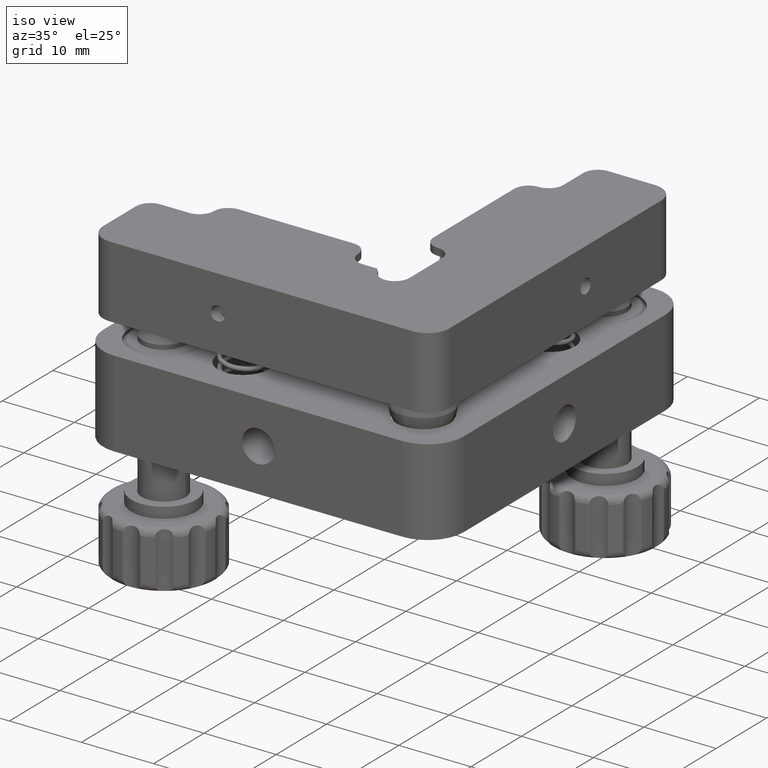
[diagram: clean part render]
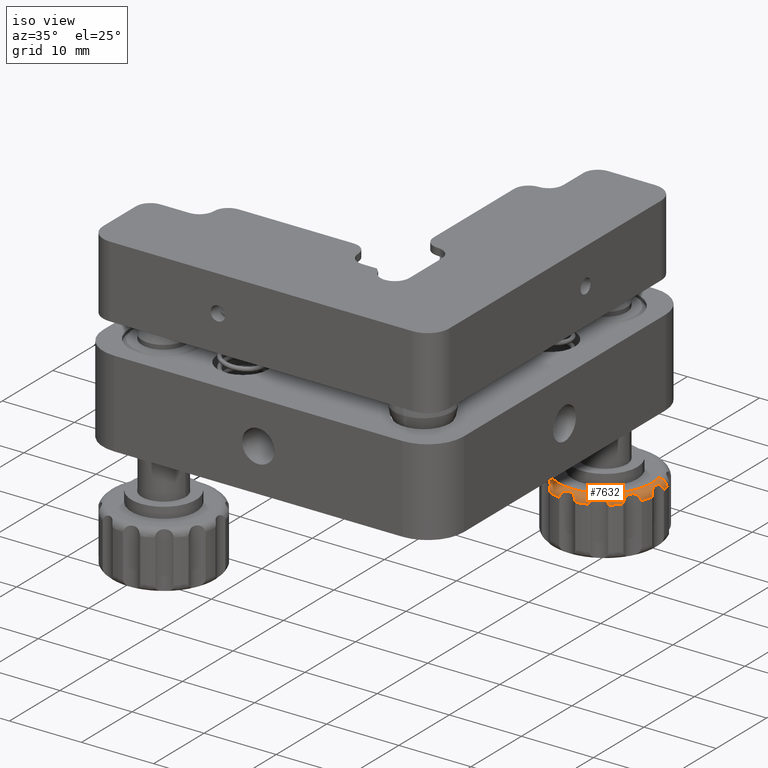
[diagram: same view with one face highlighted and labeled with its STEP entity id]
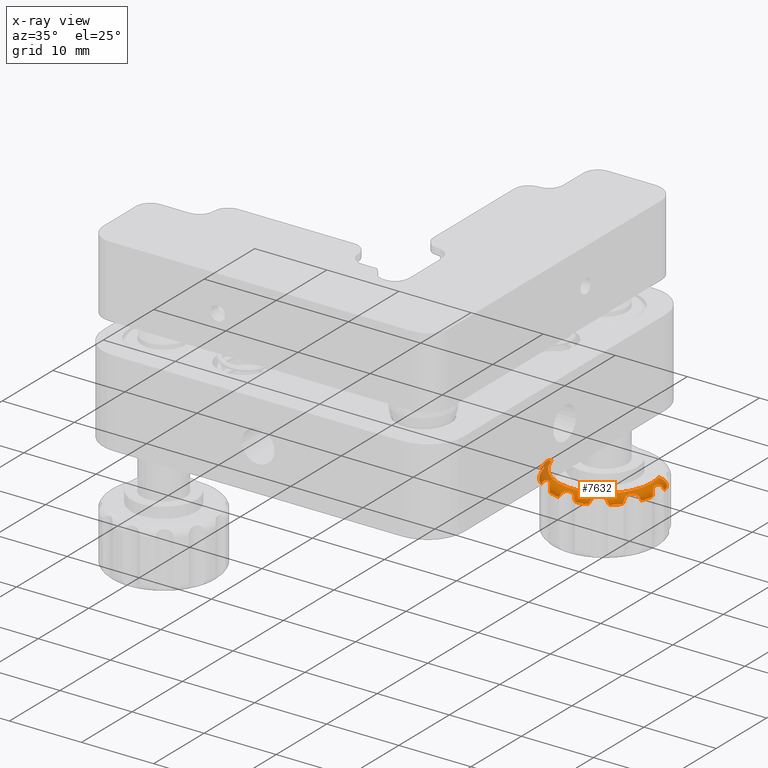
[diagram: x-ray of the same camera — body ghosted, the highlighted face saturated]
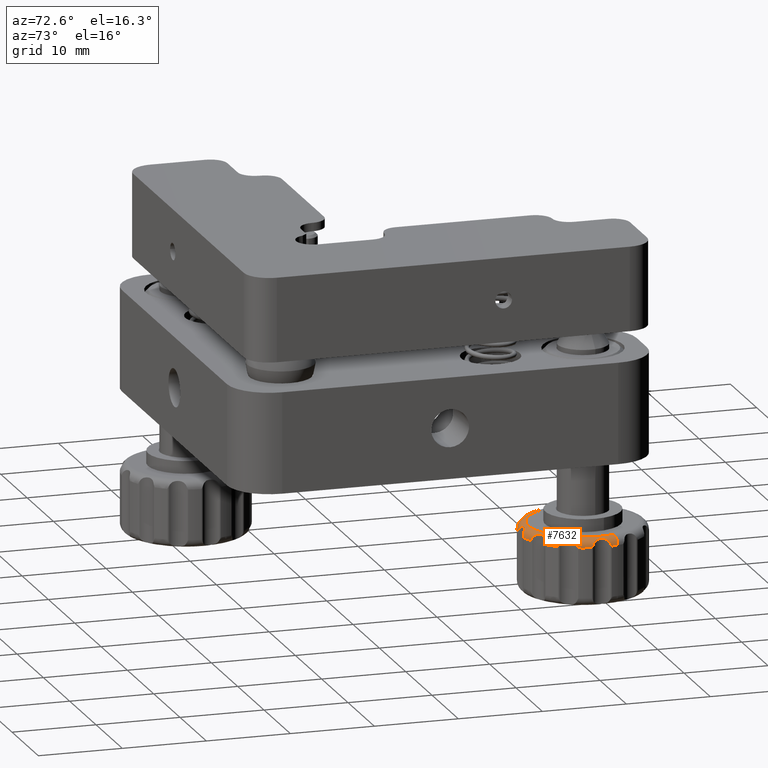
[diagram: same view with one face highlighted and labeled with its STEP entity id]
A machine part, iso view. The second image highlights one B-rep face of the part: STEP entity #7632.
The next image is the same camera in x-ray: the body ghosted, the highlighted face saturated — about 14% of this face is hidden behind the body in this view.
A second angle (auxiliary view) of the same face is appended — the face is thin or edge-on in the first view.
In plain terms, the highlighted toroidal blend (fillet) surface has major radius 6.5 mm and minor (blend) radius 1 mm.
Its self-contained STEP definition (entity closure, byte-faithful):
#13 = VERTEX_POINT ( 'NONE', #11383 ) ;
#17 = CARTESIAN_POINT ( 'NONE',  ( 17.54736110693996665, 10.96371785645358443, -23.65797987019828952 ) ) ;
#51 = CARTESIAN_POINT ( 'NONE',  ( 13.57376132078033670, 12.17490989872115037, -23.91706082489124086 ) ) ;
#95 = CARTESIAN_POINT ( 'NONE',  ( 18.13054736227067210, 10.99868434283909835, -23.63430141390763950 ) ) ;
#132 = CARTESIAN_POINT ( 'NONE',  ( 13.50611747358433412, 12.16726805095306396, -23.98721942998191281 ) ) ;
#275 = CARTESIAN_POINT ( 'NONE',  ( 18.32550624043057397, 10.95732295394623534, -23.65752537221050389 ) ) ;
#279 = CARTESIAN_POINT ( 'NONE',  ( 25.33191162596630974, 16.98277899368543231, -24.06897026124147132 ) ) ;
#299 = ORIENTED_EDGE ( 'NONE', *, *, #8260, .F. ) ;
#307 = CARTESIAN_POINT ( 'NONE',  ( 14.76055815027630480, 11.73810964725261030, -23.65752537221052165 ) ) ;
#363 = CARTESIAN_POINT ( 'NONE',  ( 25.31471035227310296, 18.84550826198535134, -23.98780853955109649 ) ) ;
#403 = ORIENTED_EDGE ( 'NONE', *, *, #9422, .T. ) ;
#642 = CARTESIAN_POINT ( 'NONE',  ( 15.09318460601004830, 11.19249745266708373, -24.06897026124344308 ) ) ;
#707 = EDGE_CURVE ( 'NONE', #17196, #5653, #12650, .T. ) ;
#730 = VERTEX_POINT ( 'NONE', #14435 ) ;
#847 = CARTESIAN_POINT ( 'NONE',  ( 24.26189035274741101, 14.76055815027634921, -23.65752537221047902 ) ) ;
#874 = CARTESIAN_POINT ( 'NONE',  ( 12.07887275102659252, 13.55793755467740347, -24.06897026124342176 ) ) ;
#886 = EDGE_CURVE ( 'NONE', #15145, #12227, #10916, .T. ) ;
#927 = CARTESIAN_POINT ( 'NONE',  ( 16.98277899368539678, 10.66808837403372756, -24.06897026124147132 ) ) ;
#1104 = EDGE_CURVE ( 'NONE', #4990, #6647, #16605, .T. ) ;
#1144 = DIRECTION ( 'NONE',  ( -0.9681941527301307637, -0.2502000851702178008, 0.000000000000000000 ) ) ;
#1165 = CARTESIAN_POINT ( 'NONE',  ( 18.00000000000004974, 17.99999999999999645, -23.50041507641943284 ) ) ;
#1181 = CARTESIAN_POINT ( 'NONE',  ( 24.29326199274591502, 19.62630055360641279, -24.50041507641943284 ) ) ;
#1255 = CARTESIAN_POINT ( 'NONE',  ( 21.61371516070391863, 12.00195646212024414, -23.63430141390762529 ) ) ;
#1326 = CARTESIAN_POINT ( 'NONE',  ( 17.02454954502446682, 10.70176469545237730, -23.98721942998188794 ) ) ;
#1417 = CARTESIAN_POINT ( 'NONE',  ( 25.41533429602393568, 19.12375143079423623, -24.50041507641942573 ) ) ;
#1426 = CARTESIAN_POINT ( 'NONE',  ( 25.25779534665062798, 17.07930991122190889, -23.91706082489121599 ) ) ;
#1454 = ORIENTED_EDGE ( 'NONE', *, *, #2158, .F. ) ;
#1543 = CARTESIAN_POINT ( 'NONE',  ( 15.04847829699423656, 11.30615792920666074, -23.91665278817948348 ) ) ;
#1590 = CARTESIAN_POINT ( 'NONE',  ( 17.07930991122189113, 10.74220465334940933, -23.91706082489121954 ) ) ;
#1599 = CIRCLE ( 'NONE', #13940, 7.500000000000022204 ) ;
#1702 = B_SPLINE_CURVE_WITH_KNOTS ( 'NONE', 3,
 ( #14369, #3826, #10414, #3919 ),
 .UNSPECIFIED., .F., .F.,
 ( 4, 4 ),
 ( 6.463701650357584330E-16, 0.0004984791478706602922 ),
 .UNSPECIFIED. ) ;
#1775 = DIRECTION ( 'NONE',  ( -6.271672922119195220E-18, 6.585351383577223838E-17, -1.000000000000000000 ) ) ;
#1795 = CARTESIAN_POINT ( 'NONE',  ( 25.34887783931259619, 18.88637529835948570, -24.06897026124343597 ) ) ;
#2080 = CARTESIAN_POINT ( 'NONE',  ( 11.97275530877975669, 14.43682250916367238, -23.63468020554455862 ) ) ;
#2098 = EDGE_CURVE ( 'NONE', #11621, #2130, #6092, .T. ) ;
#2130 = VERTEX_POINT ( 'NONE', #3545 ) ;
#2158 = EDGE_CURVE ( 'NONE', #13920, #5653, #11321, .T. ) ;
#2162 = CARTESIAN_POINT ( 'NONE',  ( 22.44206244532263028, 12.07887275102657654, -24.06897026124343597 ) ) ;
#2185 = AXIS2_PLACEMENT_3D ( 'NONE', #17256, #17338, #2738 ) ;
#2190 = CARTESIAN_POINT ( 'NONE',  ( 10.99700442474260420, 15.31397973034320614, -24.35451595358334131 ) ) ;
#2229 = B_SPLINE_CURVE_WITH_KNOTS ( 'NONE', 3,
 ( #15647, #14404, #3604, #2380 ),
 .UNSPECIFIED., .F., .F.,
 ( 4, 4 ),
 ( 6.548759187033097377E-16, 0.0004984791478706620269 ),
 .UNSPECIFIED. ) ;
#2246 = CARTESIAN_POINT ( 'NONE',  ( 23.82765957623281849, 13.27823806406721019, -24.35451595358456700 ) ) ;
#2250 = CARTESIAN_POINT ( 'NONE',  ( 23.86727963797602570, 14.08986214809593918, -23.65797987019827886 ) ) ;
#2293 = EDGE_CURVE ( 'NONE', #13, #6470, #8159, .T. ) ;
#2380 = CARTESIAN_POINT ( 'NONE',  ( 12.14000783748639023, 13.31913556538114385, -24.50041507641942218 ) ) ;
#2413 = EDGE_CURVE ( 'NONE', #15441, #2859, #8879, .T. ) ;
#2508 = CARTESIAN_POINT ( 'NONE',  ( 16.82466400097546355, 10.59221779440846944, -24.35451595358413002 ) ) ;
#2583 = CARTESIAN_POINT ( 'NONE',  ( 20.90701974516727191, 11.39170172619304466, -23.80152507313179200 ) ) ;
#2660 = CARTESIAN_POINT ( 'NONE',  ( 22.38958681012550755, 12.08802914459916522, -23.98780853955108583 ) ) ;
#2667 = DIRECTION ( 'NONE',  ( -0.2502000851702179673, 0.9681941527301306527, 6.532816013180139306E-17 ) ) ;
#2694 = EDGE_CURVE ( 'NONE', #17196, #15870, #1599, .T. ) ;
#2738 = DIRECTION ( 'NONE',  ( 0.9681941527301309858, 0.2502000851702171347, 0.000000000000000000 ) ) ;
#2792 = CARTESIAN_POINT ( 'NONE',  ( 20.78501658025154342, 11.14176777045345723, -24.06897026124146421 ) ) ;
#2841 = CARTESIAN_POINT ( 'NONE',  ( 22.44206244532263028, 12.07887275102657654, -24.06897026124343597 ) ) ;
#2859 = VERTEX_POINT ( 'NONE', #1417 ) ;
#2963 = CARTESIAN_POINT ( 'NONE',  ( 24.98374359330782468, 15.26553013859496666, -24.50041507641944705 ) ) ;
#3108 = VERTEX_POINT ( 'NONE', #10264 ) ;
#3169 = DIRECTION ( 'NONE',  ( -6.271672922119195220E-18, 6.585351383577223838E-17, -1.000000000000000000 ) ) ;
#3178 = CARTESIAN_POINT ( 'NONE',  ( 13.27823806406687979, 12.17234042376747283, -24.35451595358431476 ) ) ;
#3380 = EDGE_CURVE ( 'NONE', #4990, #4997, #14215, .T. ) ;
#3413 = CARTESIAN_POINT ( 'NONE',  ( 15.26553013859495422, 11.01625640669220196, -24.50041507641944349 ) ) ;
#3467 = CARTESIAN_POINT ( 'NONE',  ( 11.59009899395369025, 14.95073581537296548, -23.69698096496361828 ) ) ;
#3545 = CARTESIAN_POINT ( 'NONE',  ( 16.98277899368539678, 10.66808837403372756, -24.06897026124147132 ) ) ;
#3604 = CARTESIAN_POINT ( 'NONE',  ( 12.08940626894361081, 13.38248386337468432, -24.35537818622453798 ) ) ;
#3639 = CARTESIAN_POINT ( 'NONE',  ( 23.82170208552129509, 13.73055569168192847, -23.80152507313179200 ) ) ;
#3679 = ORIENTED_EDGE ( 'NONE', *, *, #7449, .F. ) ;
#3758 = CARTESIAN_POINT ( 'NONE',  ( 13.45310495428525854, 12.15898877676804801, -24.06897026124146777 ) ) ;
#3793 = CARTESIAN_POINT ( 'NONE',  ( 19.12375143079422202, 10.58466570397609274, -24.50041507641945771 ) ) ;
#3808 = EDGE_CURVE ( 'NONE', #4929, #8273, #12588, .T. ) ;
#3826 = CARTESIAN_POINT ( 'NONE',  ( 24.89403018898017450, 15.12485298390218880, -24.20935912257575495 ) ) ;
#3895 = CARTESIAN_POINT ( 'NONE',  ( 22.07664494805719713, 12.10015875962884380, -23.75691461489521927 ) ) ;
#3919 = CARTESIAN_POINT ( 'NONE',  ( 24.98374359330782468, 15.26553013859496666, -24.50041507641944705 ) ) ;
#3963 = CARTESIAN_POINT ( 'NONE',  ( 17.74272711139797210, 11.00188844586368120, -23.63447837681784591 ) ) ;
#4058 = CARTESIAN_POINT ( 'NONE',  ( 20.78501658025154342, 11.14176777045345723, -24.06897026124146421 ) ) ;
#4082 = CARTESIAN_POINT ( 'NONE',  ( 18.00000000000004263, 17.99999999999999289, -24.50041507641943284 ) ) ;
#4168 = CIRCLE ( 'NONE', #16811, 7.500000000000022204 ) ;
#4271 = ORIENTED_EDGE ( 'NONE', *, *, #2098, .T. ) ;
#4487 = DIRECTION ( 'NONE',  ( -0.9681941527301307637, -0.2502000851702178008, 0.000000000000000000 ) ) ;
#4659 = ORIENTED_EDGE ( 'NONE', *, *, #14947, .T. ) ;
#4697 = CARTESIAN_POINT ( 'NONE',  ( 11.20882654326226735, 15.18907600274809511, -23.95943720367419871 ) ) ;
#4700 = ORIENTED_EDGE ( 'NONE', *, *, #5992, .F. ) ;
#4814 = AXIS2_PLACEMENT_3D ( 'NONE', #10450, #12932, #5097 ) ;
#4838 = CARTESIAN_POINT ( 'NONE',  ( 18.00000000000004263, 17.99999999999999289, -24.50041507641943284 ) ) ;
#4842 = CARTESIAN_POINT ( 'NONE',  ( 18.00000000000004263, 17.99999999999999289, -24.50041507641943284 ) ) ;
#4854 = ORIENTED_EDGE ( 'NONE', *, *, #8492, .F. ) ;
#4929 = VERTEX_POINT ( 'NONE', #8283 ) ;
#4935 = ORIENTED_EDGE ( 'NONE', *, *, #14344, .F. ) ;
#4990 = VERTEX_POINT ( 'NONE', #16493 ) ;
#4997 = VERTEX_POINT ( 'NONE', #8383 ) ;
#5044 = CARTESIAN_POINT ( 'NONE',  ( 23.83273194904696268, 13.50611747358428261, -23.98721942998189860 ) ) ;
#5097 = DIRECTION ( 'NONE',  ( -0.9681941527301307637, -0.2502000851702178008, -1.040435771943663203E-17 ) ) ;
#5206 = ORIENTED_EDGE ( 'NONE', *, *, #17119, .F. ) ;
#5257 = DIRECTION ( 'NONE',  ( -6.271672922119195220E-18, 6.585351383577223838E-17, -1.000000000000000000 ) ) ;
#5370 = CARTESIAN_POINT ( 'NONE',  ( 19.04358941117288850, 10.57251760914332550, -24.35537818622515260 ) ) ;
#5450 = CARTESIAN_POINT ( 'NONE',  ( 25.17646405348533634, 17.21340381171432909, -23.80152507313179910 ) ) ;
#5479 = ORIENTED_EDGE ( 'NONE', *, *, #16668, .T. ) ;
#5488 = CARTESIAN_POINT ( 'NONE',  ( 11.14176777045345013, 15.21498341974849033, -24.06897026124147843 ) ) ;
#5503 = VERTEX_POINT ( 'NONE', #16115 ) ;
#5540 = CIRCLE ( 'NONE', #8906, 6.500000000000020428 ) ;
#5577 = CARTESIAN_POINT ( 'NONE',  ( 14.27813936569745579, 12.06809405990155781, -23.63447837681787789 ) ) ;
#5612 = ORIENTED_EDGE ( 'NONE', *, *, #886, .F. ) ;
#5634 = CARTESIAN_POINT ( 'NONE',  ( 24.29326199274591502, 19.62630055360641634, -23.50041507641943284 ) ) ;
#5644 = B_SPLINE_CURVE_WITH_KNOTS ( 'NONE', 3,
 ( #14826, #9269, #11834, #2792 ),
 .UNSPECIFIED., .F., .F.,
 ( 4, 4 ),
 ( -6.324575239415941504E-06, 0.0004951179910539805227 ),
 .UNSPECIFIED. ) ;
#5653 = VERTEX_POINT ( 'NONE', #16821 ) ;
#5661 = CARTESIAN_POINT ( 'NONE',  ( 13.81830875945017745, 12.17378156628000951, -23.75719214999142181 ) ) ;
#5729 = ORIENTED_EDGE ( 'NONE', *, *, #13139, .F. ) ;
#5797 = AXIS2_PLACEMENT_3D ( 'NONE', #15819, #5257, #1144 ) ;
#5902 = CARTESIAN_POINT ( 'NONE',  ( 13.45310495428525854, 12.15898877676804801, -24.06897026124146777 ) ) ;
#5932 = EDGE_CURVE ( 'NONE', #730, #16070, #8613, .T. ) ;
#5934 = CARTESIAN_POINT ( 'NONE',  ( 11.84559957138163000, 14.66332074444354205, -23.63410946918335753 ) ) ;
#5992 = EDGE_CURVE ( 'NONE', #4929, #2130, #12966, .T. ) ;
#6002 = ORIENTED_EDGE ( 'NONE', *, *, #707, .T. ) ;
#6011 = CARTESIAN_POINT ( 'NONE',  ( 11.14176777045345013, 15.21498341974849033, -24.06897026124147843 ) ) ;
#6092 = B_SPLINE_CURVE_WITH_KNOTS ( 'NONE', 3,
 ( #6516, #2508, #17111, #927 ),
 .UNSPECIFIED., .F., .F.,
 ( 4, 4 ),
 ( -6.324575239401723209E-06, 0.0004951179910539862689 ),
 .UNSPECIFIED. ) ;
#6210 = CARTESIAN_POINT ( 'NONE',  ( 12.10253280770308315, 13.72470425257058757, -23.87250943113043178 ) ) ;
#6223 = B_SPLINE_CURVE_WITH_KNOTS ( 'NONE', 3,
 ( #12781, #7322, #2080, #5934, #10221, #3467, #15687, #8991, #4697, #6011 ),
 .UNSPECIFIED., .F., .F.,
 ( 4, 2, 2, 2, 4 ),
 ( 0.001221977629040567424, 0.001611177489734904201, 0.002000377350429240544, 0.002389577211123577322, 0.002778777071817914099 ),
 .UNSPECIFIED. ) ;
#6328 = DIRECTION ( 'NONE',  ( -0.9681941527301305417, -0.2502000851702190221, 0.000000000000000000 ) ) ;
#6470 = VERTEX_POINT ( 'NONE', #3413 ) ;
#6495 = EDGE_CURVE ( 'NONE', #13048, #3108, #14604, .T. ) ;
#6512 = CARTESIAN_POINT ( 'NONE',  ( 21.27625091983382077, 11.81082117129952991, -23.63447837681784591 ) ) ;
#6516 = CARTESIAN_POINT ( 'NONE',  ( 16.74425604995292360, 10.60587347065791697, -24.50041507641945060 ) ) ;
#6638 = ORIENTED_EDGE ( 'NONE', *, *, #3380, .F. ) ;
#6647 = VERTEX_POINT ( 'NONE', #3758 ) ;
#6711 = CARTESIAN_POINT ( 'NONE',  ( 13.45310495428525854, 12.15898877676804801, -24.06897026124146777 ) ) ;
#6762 = CARTESIAN_POINT ( 'NONE',  ( 25.29823530454765645, 17.02454954502448814, -23.98721942998189149 ) ) ;
#6778 = B_SPLINE_CURVE_WITH_KNOTS ( 'NONE', 3,
 ( #874, #16953, #6210, #11575, #10661, #15621 ),
 .UNSPECIFIED., .F., .F.,
 ( 4, 2, 4 ),
 ( 0.0004549188434785024948, 0.0008384482362595350406, 0.001221977629040567424 ),
 .UNSPECIFIED. ) ;
#6782 = CARTESIAN_POINT ( 'NONE',  ( 20.60955710328167356, 10.96862661176973042, -24.50041507641945415 ) ) ;
#6835 = CARTESIAN_POINT ( 'NONE',  ( 18.65802899660379310, 10.81095712531956821, -23.80116600699828666 ) ) ;
#6871 = CARTESIAN_POINT ( 'NONE',  ( 14.92891008157203636, 11.51960129258741539, -23.75691461489525125 ) ) ;
#6932 = CARTESIAN_POINT ( 'NONE',  ( 25.27279813373096573, 18.79082826077261359, -23.91665278817945151 ) ) ;
#6978 = VERTEX_POINT ( 'NONE', #2963 ) ;
#7287 = EDGE_CURVE ( 'NONE', #13920, #6978, #1702, .T. ) ;
#7322 = CARTESIAN_POINT ( 'NONE',  ( 12.02167043444951133, 14.31420671032105751, -23.64623095047542733 ) ) ;
#7385 = ORIENTED_EDGE ( 'NONE', *, *, #2413, .T. ) ;
#7409 = B_SPLINE_CURVE_WITH_KNOTS ( 'NONE', 3,
 ( #13460, #363, #6932, #8243, #11068, #12314, #10902, #11158, #9842, #15218, #5450, #1426, #6762, #279 ),
 .UNSPECIFIED., .F., .F.,
 ( 4, 2, 2, 2, 2, 2, 4 ),
 ( 0.0004549188434784876413, 0.0007454011220209095720, 0.001035883400563331449, 0.001616847957648187995, 0.002197812514733044325, 0.002488294793275477260, 0.002778777071817909762 ),
 .UNSPECIFIED. ) ;
#7449 = EDGE_CURVE ( 'NONE', #13, #6647, #13024, .T. ) ;
#7493 = CARTESIAN_POINT ( 'NONE',  ( 24.80750254733293048, 15.09318460601005718, -24.06897026124345018 ) ) ;
#7505 = CARTESIAN_POINT ( 'NONE',  ( 22.53283177006476024, 12.06303454995418889, -24.20935912257574074 ) ) ;
#7547 = CIRCLE ( 'NONE', #12621, 7.500000000000022204 ) ;
#7568 = EDGE_CURVE ( 'NONE', #13048, #6978, #9024, .T. ) ;
#7632 = ADVANCED_FACE ( 'NONE', ( #13011 ), #12970, .T. ) ;
#7641 = DIRECTION ( 'NONE',  ( -0.9681941527301307637, -0.2502000851702178008, 0.000000000000000000 ) ) ;
#7662 = CARTESIAN_POINT ( 'NONE',  ( 23.93190594009845285, 14.27813936569747710, -23.63447837681783525 ) ) ;
#7722 = ORIENTED_EDGE ( 'NONE', *, *, #15692, .F. ) ;
#7749 = AXIS2_PLACEMENT_3D ( 'NONE', #4838, #9796, #15173 ) ;
#7900 = DIRECTION ( 'NONE',  ( 6.271672922119195220E-18, -6.585351383577223838E-17, 1.000000000000000000 ) ) ;
#7987 = CARTESIAN_POINT ( 'NONE',  ( 20.95480755132379613, 11.46543993804098882, -23.75719214999138273 ) ) ;
#8159 = B_SPLINE_CURVE_WITH_KNOTS ( 'NONE', 3,
 ( #642, #12409, #8437, #15409 ),
 .UNSPECIFIED., .F., .F.,
 ( 4, 4 ),
 ( 6.597539039363130790E-16, 0.0004984791478706735194 ),
 .UNSPECIFIED. ) ;
#8211 = VERTEX_POINT ( 'NONE', #5488 ) ;
#8243 = CARTESIAN_POINT ( 'NONE',  ( 25.18904287468045311, 18.65802899660379310, -23.80116600699829021 ) ) ;
#8260 = EDGE_CURVE ( 'NONE', #5503, #8211, #6223, .T. ) ;
#8273 = VERTEX_POINT ( 'NONE', #16928 ) ;
#8274 = CARTESIAN_POINT ( 'NONE',  ( 14.97534839014540786, 11.44509174332936041, -23.80116600699831508 ) ) ;
#8283 = CARTESIAN_POINT ( 'NONE',  ( 18.88637529835949636, 10.65112216068745532, -24.06897026124345729 ) ) ;
#8383 = CARTESIAN_POINT ( 'NONE',  ( 12.14000783748639023, 13.31913556538114385, -24.50041507641942218 ) ) ;
#8437 = CARTESIAN_POINT ( 'NONE',  ( 15.19003374576678489, 11.04581685777051092, -24.35537818622576722 ) ) ;
#8492 = EDGE_CURVE ( 'NONE', #11255, #15893, #10280, .T. ) ;
#8613 = CIRCLE ( 'NONE', #2185, 1.000000000000000000 ) ;
#8623 = DIRECTION ( 'NONE',  ( -0.9681941527301307637, -0.2502000851702178008, 0.000000000000000000 ) ) ;
#8707 = DIRECTION ( 'NONE',  ( -6.271672922119195220E-18, 6.585351383577223838E-17, -1.000000000000000000 ) ) ;
#8833 = ORIENTED_EDGE ( 'NONE', *, *, #17153, .F. ) ;
#8879 = B_SPLINE_CURVE_WITH_KNOTS ( 'NONE', 3,
 ( #16721, #9670, #11079, #15314 ),
 .UNSPECIFIED., .F., .F.,
 ( 4, 4 ),
 ( 6.423350989931252506E-16, 0.0004984791478706531364 ),
 .UNSPECIFIED. ) ;
#8880 = B_SPLINE_CURVE_WITH_KNOTS ( 'NONE', 3,
 ( #10149, #7505, #10749, #15963 ),
 .UNSPECIFIED., .F., .F.,
 ( 4, 4 ),
 ( 6.510114673261154670E-16, 0.0004984791478706676647 ),
 .UNSPECIFIED. ) ;
#8889 = CARTESIAN_POINT ( 'NONE',  ( 23.85522795462861012, 13.36207466217320849, -24.20934846149217989 ) ) ;
#8906 = AXIS2_PLACEMENT_3D ( 'NONE', #1165, #7900, #6328 ) ;
#8938 = CARTESIAN_POINT ( 'NONE',  ( 25.39412652934212389, 16.74425604995293781, -24.50041507641944705 ) ) ;
#8989 = CARTESIAN_POINT ( 'NONE',  ( 23.82509010127887095, 13.57376132078030828, -23.91706082489121599 ) ) ;
#8991 = CARTESIAN_POINT ( 'NONE',  ( 11.29915202561443444, 15.14828747458170888, -23.87026367076105160 ) ) ;
#9024 = CIRCLE ( 'NONE', #9865, 7.500000000000022204 ) ;
#9025 = CARTESIAN_POINT ( 'NONE',  ( 16.74425604995292360, 10.60587347065791697, -24.50041507641945060 ) ) ;
#9072 = CARTESIAN_POINT ( 'NONE',  ( 24.12859090015043506, 14.61239950354300099, -23.63430141390762174 ) ) ;
#9269 = CARTESIAN_POINT ( 'NONE',  ( 20.68602026965625029, 10.99700442474242124, -24.35451595358298249 ) ) ;
#9335 = ORIENTED_EDGE ( 'NONE', *, *, #6495, .T. ) ;
#9382 = CARTESIAN_POINT ( 'NONE',  ( 18.88637529835949636, 10.65112216068745532, -24.06897026124345729 ) ) ;
#9416 = DIRECTION ( 'NONE',  ( -6.271672922119195220E-18, 6.585351383577223838E-17, -1.000000000000000000 ) ) ;
#9422 = EDGE_CURVE ( 'NONE', #16275, #4997, #2229, .T. ) ;
#9654 = CARTESIAN_POINT ( 'NONE',  ( 16.98277899368539678, 10.66808837403372756, -24.06897026124147132 ) ) ;
#9659 = CARTESIAN_POINT ( 'NONE',  ( 18.00000000000004263, 17.99999999999999289, -24.50041507641943284 ) ) ;
#9670 = CARTESIAN_POINT ( 'NONE',  ( 25.40797878616260874, 18.95706473893434207, -24.20935912257574429 ) ) ;
#9765 = EDGE_CURVE ( 'NONE', #15145, #15870, #8880, .T. ) ;
#9796 = DIRECTION ( 'NONE',  ( -6.271672922119195220E-18, 6.585351383577223838E-17, -1.000000000000000000 ) ) ;
#9842 = CARTESIAN_POINT ( 'NONE',  ( 25.03628214354645110, 17.54736110693998441, -23.65797987019829662 ) ) ;
#9865 = AXIS2_PLACEMENT_3D ( 'NONE', #4082, #9416, #12077 ) ;
#9944 = ORIENTED_EDGE ( 'NONE', *, *, #2293, .T. ) ;
#9994 = CARTESIAN_POINT ( 'NONE',  ( 25.40778220559157319, 16.82466400097550618, -24.35451595358414068 ) ) ;
#10010 = CARTESIAN_POINT ( 'NONE',  ( 18.00000000000004263, 17.99999999999999289, -24.50041507641943284 ) ) ;
#10022 = CARTESIAN_POINT ( 'NONE',  ( 20.78501658025154342, 11.14176777045345723, -24.06897026124146421 ) ) ;
#10149 = CARTESIAN_POINT ( 'NONE',  ( 22.44206244532263028, 12.07887275102657654, -24.06897026124343597 ) ) ;
#10183 = CARTESIAN_POINT ( 'NONE',  ( 23.77562943818317720, 13.21543057393955856, -24.50041507641946126 ) ) ;
#10221 = CARTESIAN_POINT ( 'NONE',  ( 11.76649978067766078, 14.76873535662668147, -23.64510128223195551 ) ) ;
#10264 = CARTESIAN_POINT ( 'NONE',  ( 25.33191162596630974, 16.98277899368543231, -24.06897026124147132 ) ) ;
#10280 = CIRCLE ( 'NONE', #16765, 0.9999999999999983347 ) ;
#10311 = CARTESIAN_POINT ( 'NONE',  ( 24.48039870741261126, 14.92891008157208432, -23.75691461489521217 ) ) ;
#10379 = DIRECTION ( 'NONE',  ( -6.271672922119195220E-18, 6.585351383577223838E-17, -1.000000000000000000 ) ) ;
#10391 = ORIENTED_EDGE ( 'NONE', *, *, #9765, .T. ) ;
#10399 = CARTESIAN_POINT ( 'NONE',  ( 23.84101122323196620, 13.45310495428527275, -24.06897026124147843 ) ) ;
#10414 = CARTESIAN_POINT ( 'NONE',  ( 24.95418314222960277, 15.19003374576701049, -24.35537818622564288 ) ) ;
#10450 = CARTESIAN_POINT ( 'NONE',  ( 18.00000000000004263, 17.99999999999999289, -24.50041507641943284 ) ) ;
#10477 = CARTESIAN_POINT ( 'NONE',  ( 23.77562943818317720, 13.21543057393955856, -24.50041507641946126 ) ) ;
#10544 = CARTESIAN_POINT ( 'NONE',  ( 22.68086443461889345, 12.14000783748643997, -24.50041507641942573 ) ) ;
#10548 = CARTESIAN_POINT ( 'NONE',  ( 18.88637529835949636, 10.65112216068745532, -24.06897026124345729 ) ) ;
#10575 = CARTESIAN_POINT ( 'NONE',  ( 11.05582485927216396, 15.24818651525626123, -24.20934846149218345 ) ) ;
#10628 = CIRCLE ( 'NONE', #15694, 7.500000000000022204 ) ;
#10661 = CARTESIAN_POINT ( 'NONE',  ( 12.08484619767271084, 14.06973675138659985, -23.69964874590745652 ) ) ;
#10749 = CARTESIAN_POINT ( 'NONE',  ( 22.61751613662356775, 12.08940626894223236, -24.35537818622582407 ) ) ;
#10902 = CARTESIAN_POINT ( 'NONE',  ( 25.00131565716093718, 18.13054736227066144, -23.63430141390762884 ) ) ;
#10916 = B_SPLINE_CURVE_WITH_KNOTS ( 'NONE', 3,
 ( #2841, #2660, #11962, #13214, #3895, #14616, #1255, #6512, #17269, #7987, #2583, #13374, #16107, #4058 ),
 .UNSPECIFIED., .F., .F.,
 ( 4, 2, 2, 2, 2, 2, 4 ),
 ( 0.0004549188434784784798, 0.0007454011220208960195, 0.001035883400563313451, 0.001616847957648148530, 0.002197812514732984043, 0.002488294793275404836, 0.002778777071817826062 ),
 .UNSPECIFIED. ) ;
#11017 = CARTESIAN_POINT ( 'NONE',  ( 13.73055569168196399, 12.17829791447871912, -23.80152507313182042 ) ) ;
#11068 = CARTESIAN_POINT ( 'NONE',  ( 25.14773486648514123, 18.58055746704143729, -23.75691461489523348 ) ) ;
#11079 = CARTESIAN_POINT ( 'NONE',  ( 25.42748239085669226, 19.04358941117302351, -24.35537818622505668 ) ) ;
#11111 = ORIENTED_EDGE ( 'NONE', *, *, #2694, .F. ) ;
#11158 = CARTESIAN_POINT ( 'NONE',  ( 24.99811155413635433, 17.74272711139796854, -23.63447837681784947 ) ) ;
#11255 = VERTEX_POINT ( 'NONE', #5634 ) ;
#11321 = B_SPLINE_CURVE_WITH_KNOTS ( 'NONE', 3,
 ( #7493, #12876, #17009, #14270, #10311, #847, #9072, #7662, #2250, #15685, #3639, #8989, #5044, #10399 ),
 .UNSPECIFIED., .F., .F.,
 ( 4, 2, 2, 2, 2, 2, 4 ),
 ( 0.0004549188434785001638, 0.0007454011220209323402, 0.001035883400563364408, 0.001616847957648235700, 0.002197812514733107209, 0.002488294793275540578, 0.002778777071817973513 ),
 .UNSPECIFIED. ) ;
#11383 = CARTESIAN_POINT ( 'NONE',  ( 15.09318460601004830, 11.19249745266708373, -24.06897026124344308 ) ) ;
#11444 = CARTESIAN_POINT ( 'NONE',  ( 18.00000000000004263, 17.99999999999999289, -24.50041507641943284 ) ) ;
#11459 = CARTESIAN_POINT ( 'NONE',  ( 23.84101122323196620, 13.45310495428527275, -24.06897026124147843 ) ) ;
#11471 = ORIENTED_EDGE ( 'NONE', *, *, #7568, .F. ) ;
#11575 = CARTESIAN_POINT ( 'NONE',  ( 12.09960323940976501, 13.94647177914212755, -23.74200182636072398 ) ) ;
#11621 = VERTEX_POINT ( 'NONE', #9025 ) ;
#11834 = CARTESIAN_POINT ( 'NONE',  ( 20.75181348474378851, 11.05582485927216929, -24.20934846149216924 ) ) ;
#11865 = ORIENTED_EDGE ( 'NONE', *, *, #3808, .T. ) ;
#11962 = CARTESIAN_POINT ( 'NONE',  ( 22.32127643072524492, 12.09698618997925834, -23.91665278817944440 ) ) ;
#12042 = CARTESIAN_POINT ( 'NONE',  ( 18.84550826198534423, 10.68528964772691658, -23.98780853955108938 ) ) ;
#12077 = DIRECTION ( 'NONE',  ( -0.9681941527301307637, -0.2502000851702178008, 0.000000000000000000 ) ) ;
#12126 = CARTESIAN_POINT ( 'NONE',  ( 18.79082826077261714, 10.72720186626905736, -23.91665278817946216 ) ) ;
#12198 = CARTESIAN_POINT ( 'NONE',  ( 12.07887275102659252, 13.55793755467740347, -24.06897026124342176 ) ) ;
#12212 = CARTESIAN_POINT ( 'NONE',  ( 18.58055746704143729, 10.85226513351489430, -23.75691461489522283 ) ) ;
#12227 = VERTEX_POINT ( 'NONE', #10022 ) ;
#12251 = CARTESIAN_POINT ( 'NONE',  ( 14.61239950354297257, 11.87140909984957027, -23.63430141390766082 ) ) ;
#12314 = CARTESIAN_POINT ( 'NONE',  ( 25.04267704605379663, 18.32550624043054910, -23.65752537221050389 ) ) ;
#12377 = ORIENTED_EDGE ( 'NONE', *, *, #1104, .T. ) ;
#12409 = CARTESIAN_POINT ( 'NONE',  ( 15.12485298390214439, 11.10596981101986103, -24.20935912257575495 ) ) ;
#12414 = CARTESIAN_POINT ( 'NONE',  ( 24.80750254733293048, 15.09318460601005718, -24.06897026124345018 ) ) ;
#12431 = CARTESIAN_POINT ( 'NONE',  ( 25.39412652934212389, 16.74425604995293781, -24.50041507641944705 ) ) ;
#12588 = B_SPLINE_CURVE_WITH_KNOTS ( 'NONE', 3,
 ( #10548, #13207, #5370, #3793 ),
 .UNSPECIFIED., .F., .F.,
 ( 4, 4 ),
 ( 6.393579832114327956E-16, 0.0004984791478706391502 ),
 .UNSPECIFIED. ) ;
#12621 = AXIS2_PLACEMENT_3D ( 'NONE', #9659, #1775, #4487 ) ;
#12650 = B_SPLINE_CURVE_WITH_KNOTS ( 'NONE', 3,
 ( #10477, #2246, #8889, #11459 ),
 .UNSPECIFIED., .F., .F.,
 ( 4, 4 ),
 ( -6.324575239436485441E-06, 0.0004951179910539674038 ),
 .UNSPECIFIED. ) ;
#12781 = CARTESIAN_POINT ( 'NONE',  ( 12.05349011532110381, 14.19107474199798169, -23.67313584432698192 ) ) ;
#12876 = CARTESIAN_POINT ( 'NONE',  ( 24.75747911738621809, 15.07487645785240638, -23.98780853955108583 ) ) ;
#12932 = DIRECTION ( 'NONE',  ( -6.271672922119195220E-18, 6.585351383577223838E-17, -1.000000000000000000 ) ) ;
#12966 = B_SPLINE_CURVE_WITH_KNOTS ( 'NONE', 3,
 ( #9382, #12042, #12126, #6835, #12212, #275, #95, #3963, #17, #14951, #14769, #1590, #1326, #9654 ),
 .UNSPECIFIED., .F., .F.,
 ( 4, 2, 2, 2, 2, 2, 4 ),
 ( 0.0004549188434784928996, 0.0007454011220209283287, 0.001035883400563363758, 0.001616847957648243289, 0.002197812514733122821, 0.002488294793275556624, 0.002778777071817990427 ),
 .UNSPECIFIED. ) ;
#12970 = TOROIDAL_SURFACE ( 'NONE', #4814, 6.500000000000000000, 1.000000000000000000 ) ;
#13011 = FACE_OUTER_BOUND ( 'NONE', #16501, .T. ) ;
#13024 = B_SPLINE_CURVE_WITH_KNOTS ( 'NONE', 3,
 ( #13571, #13489, #1543, #8274, #6871, #307, #12251, #5577, #13748, #5661, #11017, #51, #132, #6711 ),
 .UNSPECIFIED., .F., .F.,
 ( 4, 2, 2, 2, 2, 2, 4 ),
 ( 0.0004549188434784740887, 0.0007454011220209026331, 0.001035883400563331232, 0.001616847957648188212, 0.002197812514733045192, 0.002488294793275473791, 0.002778777071817902389 ),
 .UNSPECIFIED. ) ;
#13048 = VERTEX_POINT ( 'NONE', #12431 ) ;
#13139 = EDGE_CURVE ( 'NONE', #15893, #2859, #13364, .T. ) ;
#13185 = CARTESIAN_POINT ( 'NONE',  ( 10.73854385452404081, 16.12349936122335237, -24.50041507641943284 ) ) ;
#13207 = CARTESIAN_POINT ( 'NONE',  ( 18.95706473893435273, 10.59202121383743922, -24.20935912257576206 ) ) ;
#13214 = CARTESIAN_POINT ( 'NONE',  ( 22.16439126482590538, 12.10312073993313753, -23.80116600699828311 ) ) ;
#13364 = CIRCLE ( 'NONE', #7749, 7.500000000000022204 ) ;
#13374 = CARTESIAN_POINT ( 'NONE',  ( 20.83155666743094869, 11.25421980994305216, -23.91706082489121954 ) ) ;
#13460 = CARTESIAN_POINT ( 'NONE',  ( 25.34887783931259619, 18.88637529835948570, -24.06897026124343597 ) ) ;
#13489 = CARTESIAN_POINT ( 'NONE',  ( 15.07487645785234598, 11.24252088261384941, -23.98780853955111780 ) ) ;
#13571 = CARTESIAN_POINT ( 'NONE',  ( 15.09318460601004830, 11.19249745266708373, -24.06897026124344308 ) ) ;
#13748 = CARTESIAN_POINT ( 'NONE',  ( 14.08986214809594806, 12.13272036202397963, -23.65797987019831083 ) ) ;
#13814 = ORIENTED_EDGE ( 'NONE', *, *, #5932, .T. ) ;
#13891 = CARTESIAN_POINT ( 'NONE',  ( 13.36207466217319251, 12.14477204537141652, -24.20934846149216568 ) ) ;
#13893 = ORIENTED_EDGE ( 'NONE', *, *, #7287, .T. ) ;
#13920 = VERTEX_POINT ( 'NONE', #12414 ) ;
#13940 = AXIS2_PLACEMENT_3D ( 'NONE', #4842, #10379, #7641 ) ;
#13962 = CARTESIAN_POINT ( 'NONE',  ( 25.38973882257060666, 16.91105281390078474, -24.20934846149216924 ) ) ;
#14138 = DIRECTION ( 'NONE',  ( -0.9681941527301307637, -0.2502000851702178008, 0.000000000000000000 ) ) ;
#14205 = CARTESIAN_POINT ( 'NONE',  ( 10.96862661176970910, 15.39044289671839572, -24.50041507641946126 ) ) ;
#14215 = CIRCLE ( 'NONE', #5797, 7.500000000000022204 ) ;
#14270 = CARTESIAN_POINT ( 'NONE',  ( 24.55490825667068577, 14.97534839014546471, -23.80116600699827600 ) ) ;
#14301 = CARTESIAN_POINT ( 'NONE',  ( 11.14176777045345013, 15.21498341974849033, -24.06897026124147843 ) ) ;
#14344 = EDGE_CURVE ( 'NONE', #730, #11255, #5540, .T. ) ;
#14369 = CARTESIAN_POINT ( 'NONE',  ( 24.80750254733293048, 15.09318460601005718, -24.06897026124345018 ) ) ;
#14404 = CARTESIAN_POINT ( 'NONE',  ( 12.06303454995416047, 13.46716822993528062, -24.20935912257572653 ) ) ;
#14435 = CARTESIAN_POINT ( 'NONE',  ( 11.70673800725417735, 16.37369944639356945, -23.50041507641943284 ) ) ;
#14604 = B_SPLINE_CURVE_WITH_KNOTS ( 'NONE', 3,
 ( #8938, #9994, #13962, #17051 ),
 .UNSPECIFIED., .F., .F.,
 ( 4, 4 ),
 ( -6.324575239410434096E-06, 0.0004951179910539752101 ),
 .UNSPECIFIED. ) ;
#14616 = CARTESIAN_POINT ( 'NONE',  ( 21.80323519633012808, 12.06361588768316651, -23.65752537221049323 ) ) ;
#14769 = CARTESIAN_POINT ( 'NONE',  ( 17.21340381171431844, 10.82353594651470452, -23.80152507313179910 ) ) ;
#14826 = CARTESIAN_POINT ( 'NONE',  ( 20.60955710328167356, 10.96862661176973042, -24.50041507641945415 ) ) ;
#14947 = EDGE_CURVE ( 'NONE', #16672, #12227, #5644, .T. ) ;
#14951 = CARTESIAN_POINT ( 'NONE',  ( 17.29165837176098819, 10.86350120812640618, -23.75719214999139695 ) ) ;
#14982 = VERTEX_POINT ( 'NONE', #16406 ) ;
#15145 = VERTEX_POINT ( 'NONE', #2162 ) ;
#15173 = DIRECTION ( 'NONE',  ( -0.9681941527301307637, -0.2502000851702178008, 0.000000000000000000 ) ) ;
#15218 = CARTESIAN_POINT ( 'NONE',  ( 25.13649879187364533, 17.29165837176098464, -23.75719214999138984 ) ) ;
#15314 = CARTESIAN_POINT ( 'NONE',  ( 25.41533429602393568, 19.12375143079423623, -24.50041507641942573 ) ) ;
#15409 = CARTESIAN_POINT ( 'NONE',  ( 15.26553013859495422, 11.01625640669220196, -24.50041507641944349 ) ) ;
#15441 = VERTEX_POINT ( 'NONE', #1795 ) ;
#15621 = CARTESIAN_POINT ( 'NONE',  ( 12.05349011532110381, 14.19107474199798169, -23.67313584432698192 ) ) ;
#15647 = CARTESIAN_POINT ( 'NONE',  ( 12.07887275102659252, 13.55793755467740347, -24.06897026124342176 ) ) ;
#15685 = CARTESIAN_POINT ( 'NONE',  ( 23.82621843372000825, 13.81830875945016679, -23.75719214999138273 ) ) ;
#15687 = CARTESIAN_POINT ( 'NONE',  ( 11.49062304250735167, 15.02889199437299617, -23.73909454207878511 ) ) ;
#15692 = EDGE_CURVE ( 'NONE', #16672, #8273, #4168, .T. ) ;
#15694 = AXIS2_PLACEMENT_3D ( 'NONE', #10010, #3169, #14138 ) ;
#15777 = DIRECTION ( 'NONE',  ( -0.9681941527301308748, -0.2502000851702175788, 0.000000000000000000 ) ) ;
#15819 = CARTESIAN_POINT ( 'NONE',  ( 18.00000000000004263, 17.99999999999999289, -24.50041507641943284 ) ) ;
#15870 = VERTEX_POINT ( 'NONE', #10544 ) ;
#15893 = VERTEX_POINT ( 'NONE', #16015 ) ;
#15963 = CARTESIAN_POINT ( 'NONE',  ( 22.68086443461889345, 12.14000783748643997, -24.50041507641942573 ) ) ;
#16015 = CARTESIAN_POINT ( 'NONE',  ( 25.26145614547602136, 19.87650063877663342, -24.50041507641943284 ) ) ;
#16023 = EDGE_CURVE ( 'NONE', #11621, #6470, #10628, .T. ) ;
#16070 = VERTEX_POINT ( 'NONE', #13185 ) ;
#16107 = CARTESIAN_POINT ( 'NONE',  ( 20.80435277813194617, 11.19181759597753434, -23.98721942998188439 ) ) ;
#16115 = CARTESIAN_POINT ( 'NONE',  ( 12.05349011532110381, 14.19107474199798169, -23.67313584432698192 ) ) ;
#16247 = ORIENTED_EDGE ( 'NONE', *, *, #16023, .F. ) ;
#16275 = VERTEX_POINT ( 'NONE', #12198 ) ;
#16406 = CARTESIAN_POINT ( 'NONE',  ( 10.96862661176970910, 15.39044289671839572, -24.50041507641946126 ) ) ;
#16493 = CARTESIAN_POINT ( 'NONE',  ( 13.21543057393955323, 12.22437056181685477, -24.50041507641943639 ) ) ;
#16501 = EDGE_LOOP ( 'NONE', ( #4854, #4935, #13814, #5206, #5479, #299, #16748, #403, #6638, #12377, #3679, #9944, #16247, #4271, #4700, #11865, #7722, #4659, #5612, #10391, #11111, #6002, #1454, #13893, #11471, #9335, #8833, #7385, #5729 ) ) ;
#16550 = CARTESIAN_POINT ( 'NONE',  ( 13.21543057393955323, 12.22437056181685477, -24.50041507641943639 ) ) ;
#16605 = B_SPLINE_CURVE_WITH_KNOTS ( 'NONE', 3,
 ( #16550, #3178, #13891, #5902 ),
 .UNSPECIFIED., .F., .F.,
 ( 4, 4 ),
 ( -6.324575239434439009E-06, 0.0004951179910539566702 ),
 .UNSPECIFIED. ) ;
#16646 = B_SPLINE_CURVE_WITH_KNOTS ( 'NONE', 3,
 ( #14205, #2190, #10575, #14301 ),
 .UNSPECIFIED., .F., .F.,
 ( 4, 4 ),
 ( -6.324575239431380373E-06, 0.0004951179910539877868 ),
 .UNSPECIFIED. ) ;
#16668 = EDGE_CURVE ( 'NONE', #14982, #8211, #16646, .T. ) ;
#16672 = VERTEX_POINT ( 'NONE', #6782 ) ;
#16714 = EDGE_CURVE ( 'NONE', #16275, #5503, #6778, .T. ) ;
#16721 = CARTESIAN_POINT ( 'NONE',  ( 25.34887783931259619, 18.88637529835948570, -24.06897026124343597 ) ) ;
#16748 = ORIENTED_EDGE ( 'NONE', *, *, #16714, .F. ) ;
#16765 = AXIS2_PLACEMENT_3D ( 'NONE', #1181, #2667, #15777 ) ;
#16811 = AXIS2_PLACEMENT_3D ( 'NONE', #11444, #8707, #8623 ) ;
#16821 = CARTESIAN_POINT ( 'NONE',  ( 23.84101122323196620, 13.45310495428527275, -24.06897026124147843 ) ) ;
#16928 = CARTESIAN_POINT ( 'NONE',  ( 19.12375143079422202, 10.58466570397609274, -24.50041507641945771 ) ) ;
#16953 = CARTESIAN_POINT ( 'NONE',  ( 12.09096211525411135, 13.62722215477063692, -23.96181086414040351 ) ) ;
#17009 = CARTESIAN_POINT ( 'NONE',  ( 24.69384207079339077, 15.04847829699428985, -23.91665278817944085 ) ) ;
#17051 = CARTESIAN_POINT ( 'NONE',  ( 25.33191162596630974, 16.98277899368543231, -24.06897026124147132 ) ) ;
#17111 = CARTESIAN_POINT ( 'NONE',  ( 16.91105281390074211, 10.61026117742943242, -24.20934846149216213 ) ) ;
#17119 = EDGE_CURVE ( 'NONE', #14982, #16070, #7547, .T. ) ;
#17153 = EDGE_CURVE ( 'NONE', #15441, #3108, #7409, .T. ) ;
#17196 = VERTEX_POINT ( 'NONE', #10183 ) ;
#17256 = CARTESIAN_POINT ( 'NONE',  ( 11.70673800725417379, 16.37369944639356945, -24.50041507641943284 ) ) ;
#17269 = CARTESIAN_POINT ( 'NONE',  ( 21.12614429164237606, 11.68008146896396582, -23.65797987019828597 ) ) ;
#17338 = DIRECTION ( 'NONE',  ( 0.2502000851702178563, -0.9681941527301306527, -6.532816013180139306E-17 ) ) ;